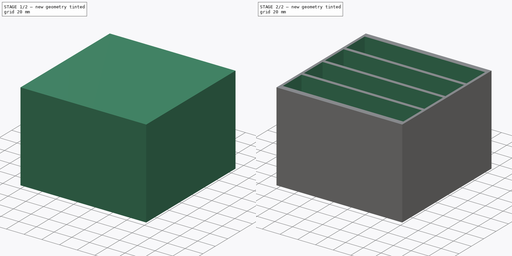
[diagram: build sequence overview — one tinted view per stage of 2, left to right]
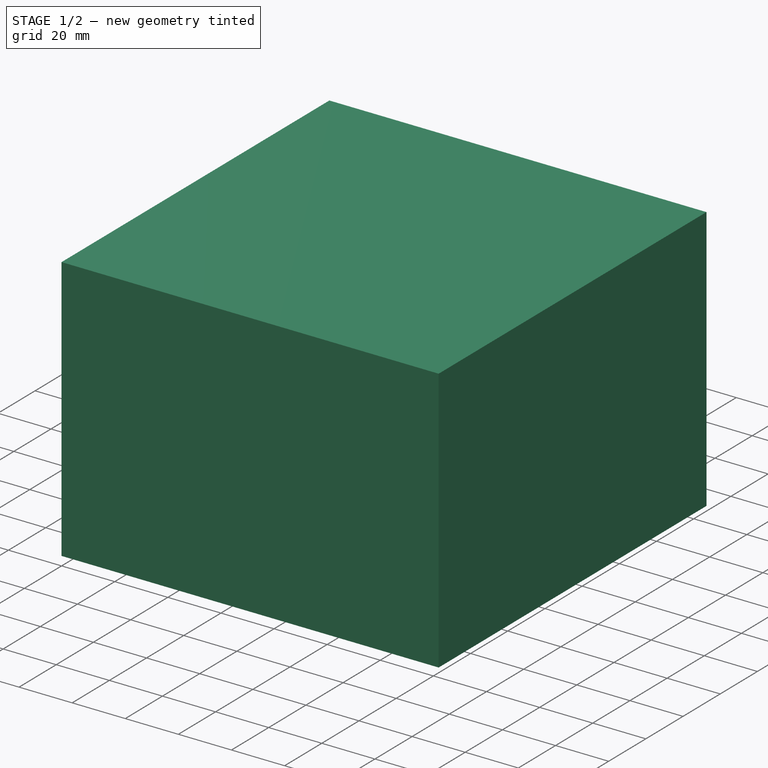
[diagram: stage 1 of 2 — iso view after this stage's code; geometry added in this stage tinted green]
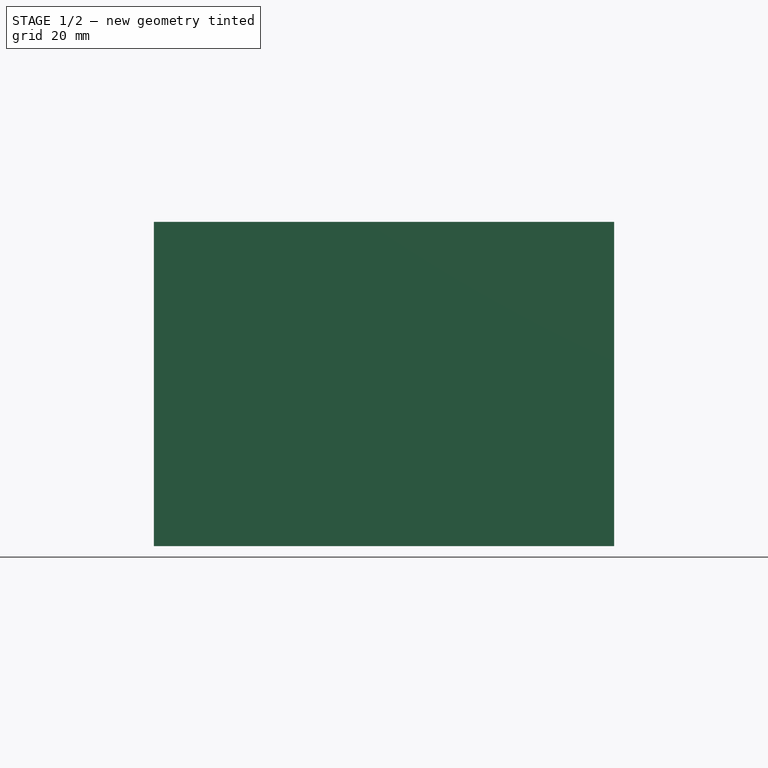
[diagram: stage 1 of 2 — front view after this stage's code; geometry added in this stage tinted green]
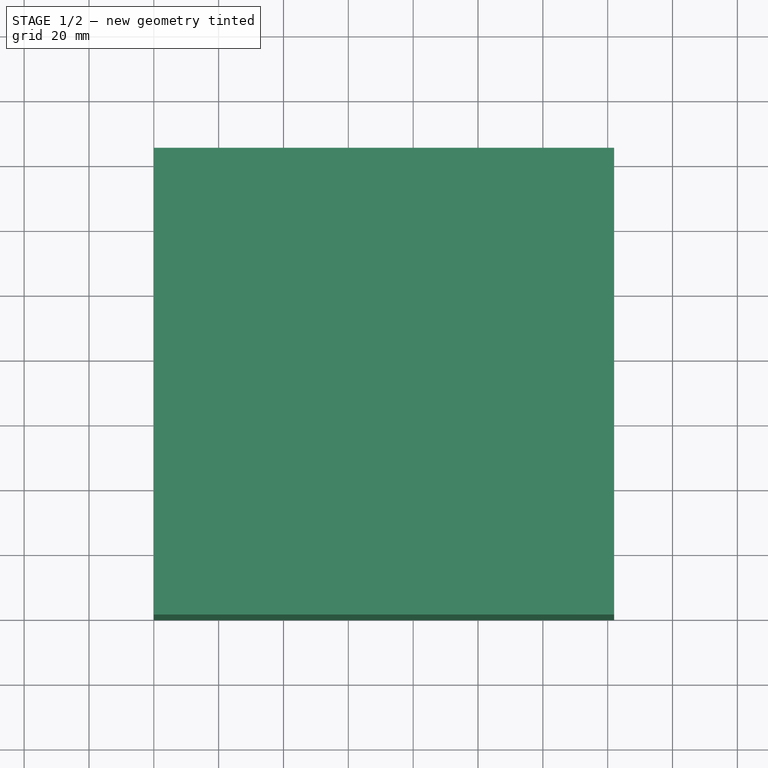
[diagram: stage 1 of 2 — top view after this stage's code; geometry added in this stage tinted green]
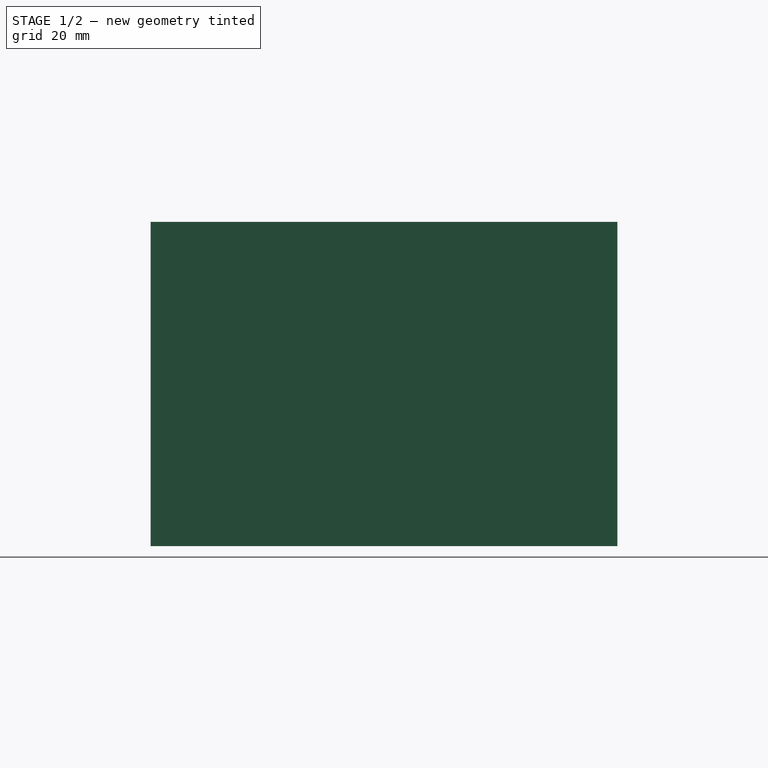
[diagram: stage 1 of 2 — right view after this stage's code; geometry added in this stage tinted green]
FCSTD DOCUMENT  (FreeCAD 0.17R9796 (Git))
Label: batterymount
License: All rights reserved
LicenseURL: http://en.wikipedia.org/wiki/All_rights_reserved
objects: Sketcher::SketchObject×2, PartDesign::Pad×1, PartDesign::Pocket×1, PartDesign::Body×1
note: 7 computed .brp shape members not serialized (recipe doc carries the construction recipe); baked Part::Feature solids carry a one-line shape summary decoded from their .brp

FEATURE [Sketcher::SketchObject] Sketch
  MapMode = 5
  Support = -> [XY_Plane]
  sketch-geometry (4):
    g0: LineSegment StartX=0 StartY=144 StartZ=0 EndX=142 EndY=144 EndZ=0
    g1: LineSegment StartX=142 StartY=144 StartZ=0 EndX=142 EndY=0 EndZ=0
    g2: LineSegment StartX=142 StartY=0 StartZ=0 EndX=0 EndY=0 EndZ=0
    g3: LineSegment StartX=0 StartY=0 StartZ=0 EndX=0 EndY=144 EndZ=0
  constraints (11):
    c: Coincident(g0,g1)
    c: Coincident(g1,g2)
    c: Coincident(g2,g3)
    c: Coincident(g3,g0)
    c: Horizontal(g0)
    c: Horizontal(g2)
    c: Vertical(g1)
    c: Vertical(g3)
    c: Coincident(g2,g-1)
    c: DistanceX(g2,g2) = 142
    c: DistanceY(g3,g3) = 144
FEATURE [PartDesign::Pad] Pad
  Length = 100
  Length2 = 100
  Profile = -> Sketch
  Type = 0
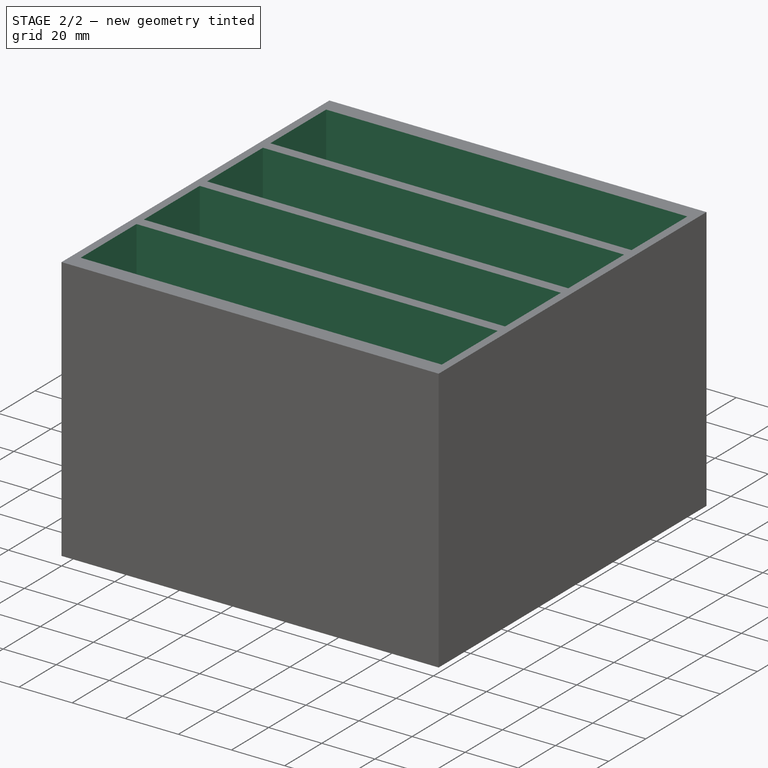
[diagram: stage 2 of 2 — iso view after this stage's code; geometry added in this stage tinted green]
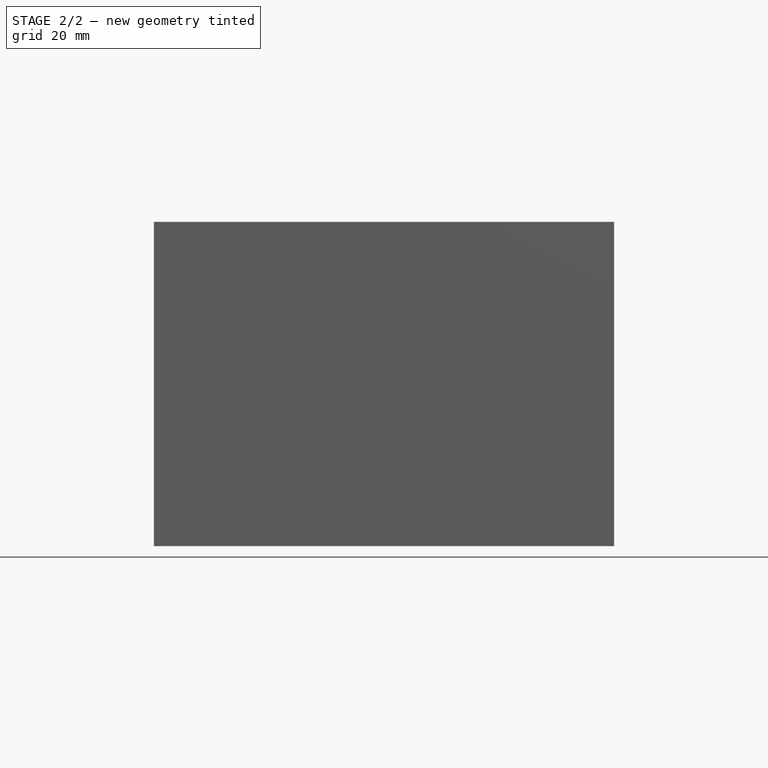
[diagram: stage 2 of 2 — front view after this stage's code; geometry added in this stage tinted green]
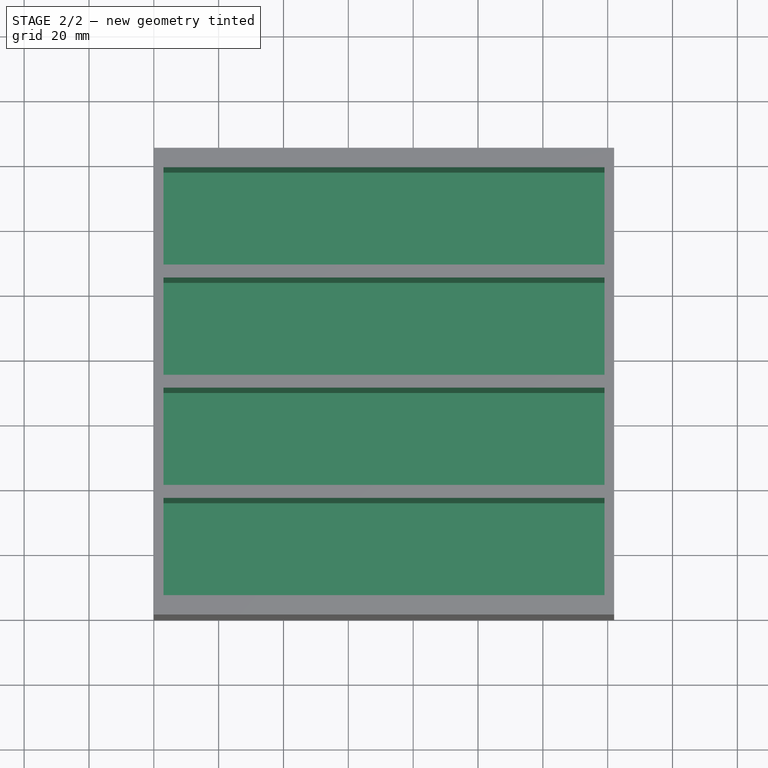
[diagram: stage 2 of 2 — top view after this stage's code; geometry added in this stage tinted green]
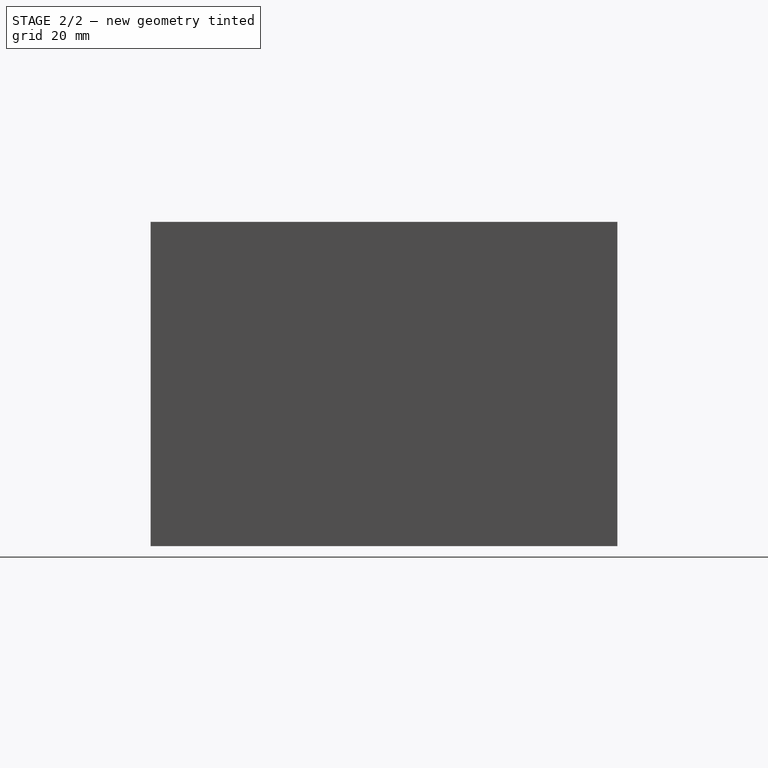
[diagram: stage 2 of 2 — right view after this stage's code; geometry added in this stage tinted green]
FEATURE [Sketcher::SketchObject] Sketch001
  MapMode = 5
  Placement = pos=(0,0,100) rot=(0,0,1;0rad)
  Support = -> [Pad]
  sketch-geometry (16):
    g0: LineSegment StartX=3 StartY=138 StartZ=0 EndX=139 EndY=138 EndZ=0
    g1: LineSegment StartX=139 StartY=138 StartZ=0 EndX=139 EndY=108 EndZ=0
    g2: LineSegment StartX=139 StartY=108 StartZ=0 EndX=3 EndY=108 EndZ=0
    g3: LineSegment StartX=3 StartY=108 StartZ=0 EndX=3 EndY=138 EndZ=0
    g4: LineSegment StartX=3 StartY=104 StartZ=0 EndX=139 EndY=104 EndZ=0
    g5: LineSegment StartX=139 StartY=104 StartZ=0 EndX=139 EndY=74 EndZ=0
    g6: LineSegment StartX=139 StartY=74 StartZ=0 EndX=3 EndY=74 EndZ=0
    g7: LineSegment StartX=3 StartY=74 StartZ=0 EndX=3 EndY=104 EndZ=0
    g8: LineSegment StartX=3 StartY=70 StartZ=0 EndX=139 EndY=70 EndZ=0
    g9: LineSegment StartX=139 StartY=70 StartZ=0 EndX=139 EndY=40 EndZ=0
    g10: LineSegment StartX=139 StartY=40 StartZ=0 EndX=3 EndY=40 EndZ=0
    g11: LineSegment StartX=3 StartY=40 StartZ=0 EndX=3 EndY=70 EndZ=0
    g12: LineSegment StartX=3 StartY=36 StartZ=0 EndX=139 EndY=36 EndZ=0
    g13: LineSegment StartX=139 StartY=36 StartZ=0 EndX=139 EndY=6 EndZ=0
    g14: LineSegment StartX=139 StartY=6 StartZ=0 EndX=3 EndY=6 EndZ=0
    g15: LineSegment StartX=3 StartY=6 StartZ=0 EndX=3 EndY=36 EndZ=0
  constraints (48):
    c: Coincident(g0,g1)
    c: Coincident(g1,g2)
    c: Coincident(g2,g3)
    c: Coincident(g3,g0)
    c: Horizontal(g0)
    c: Horizontal(g2)
    c: Vertical(g1)
    c: Vertical(g3)
    c: Coincident(g4,g5)
    c: Coincident(g5,g6)
    c: Coincident(g6,g7)
    c: Coincident(g7,g4)
    c: Horizontal(g4)
    c: Horizontal(g6)
    c: Vertical(g5)
    c: Vertical(g7)
    c: Coincident(g8,g9)
    c: Coincident(g9,g10)
    c: Coincident(g10,g11)
    c: Coincident(g11,g8)
    c: Horizontal(g8)
    c: Horizontal(g10)
    c: Vertical(g9)
    c: Vertical(g11)
    c: Coincident(g12,g13)
    c: Coincident(g13,g14)
    c: Coincident(g14,g15)
    c: Coincident(g15,g12)
    c: Horizontal(g12)
    c: Horizontal(g14)
    c: Vertical(g13)
    c: Vertical(g15)
    c: DistanceX(g-1,g14) = 3
    c: DistanceX(g14,g14) = 136
    c: DistanceY(g-1,g14) = 6
    c: DistanceY(g15,g15) = 30
    c: DistanceY(g12,g10) = 4
    c: DistanceX(g12,g10) = 0
    c: DistanceX(g10,g10) = 136
    c: DistanceY(g10,g8) = 30
    c: DistanceX(g8,g6) = 0
    c: DistanceY(g8,g6) = 4
    c: DistanceY(g7,g7) = 30
    c: DistanceX(g4,g2) = 0
    c: DistanceY(g4,g2) = 4
    c: DistanceY(g3,g3) = 30
    c: DistanceX(g6,g6) = 136
    c: DistanceX(g2,g2) = 136
FEATURE [PartDesign::Pocket] Pocket
  BaseFeature = -> Pad
  Length = 95
  Profile = -> Sketch001
  Type = 0
FEATURE [PartDesign::Body] Body
  Group = -> [Sketch,Pad,Sketch001,Pocket]
  Origin = -> BodyOrigin
  Tip = -> Pocket
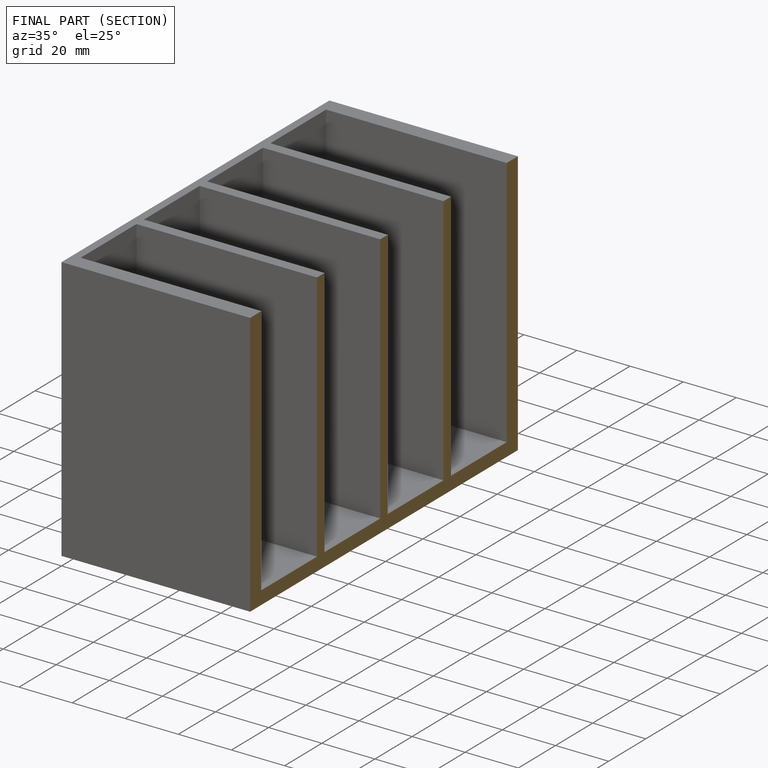
[diagram: finished part — half-section view (interior)]
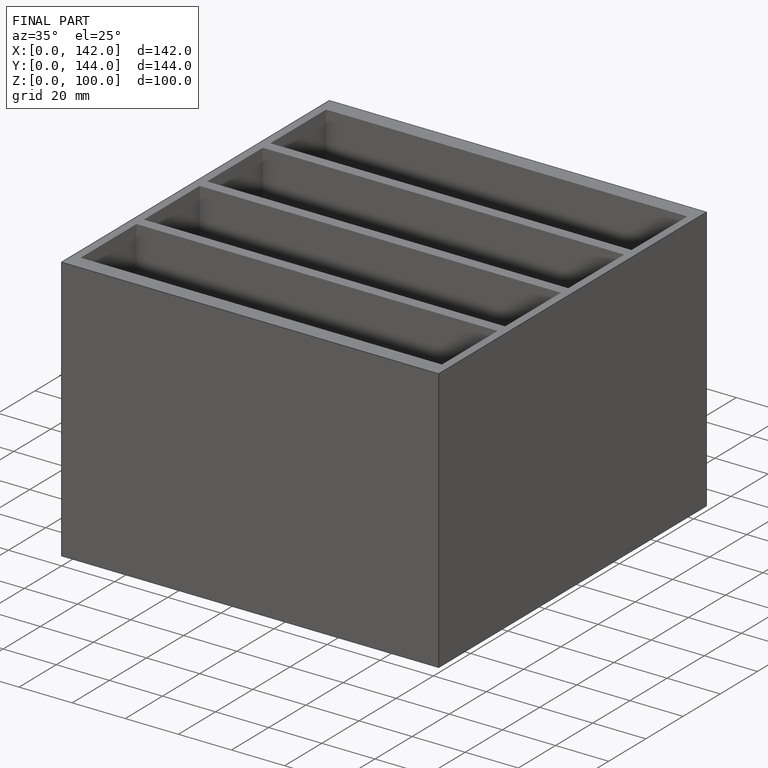
[diagram: finished part — iso view with bounding-box wireframe]
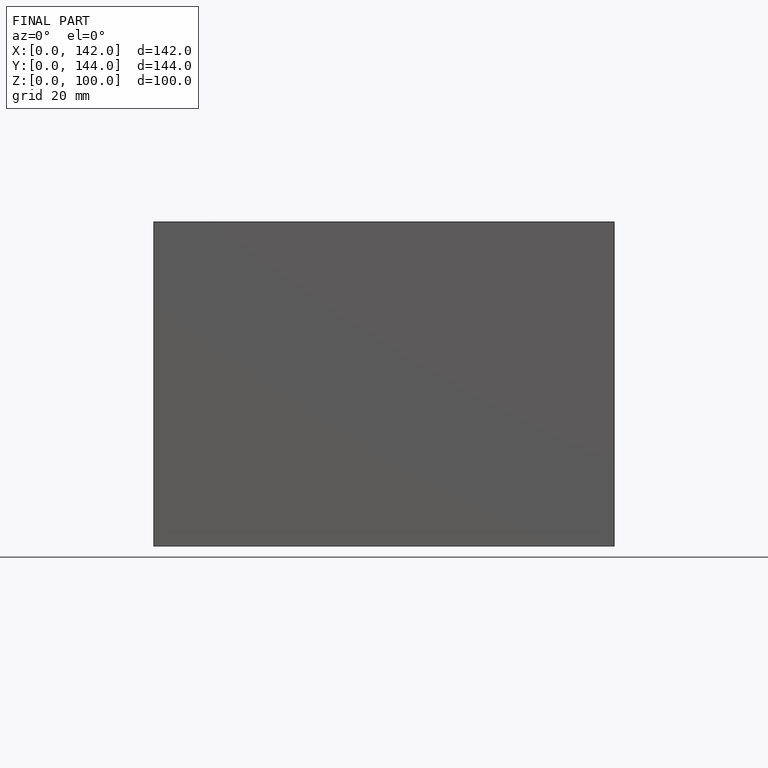
[diagram: finished part — front view with bounding-box wireframe]
